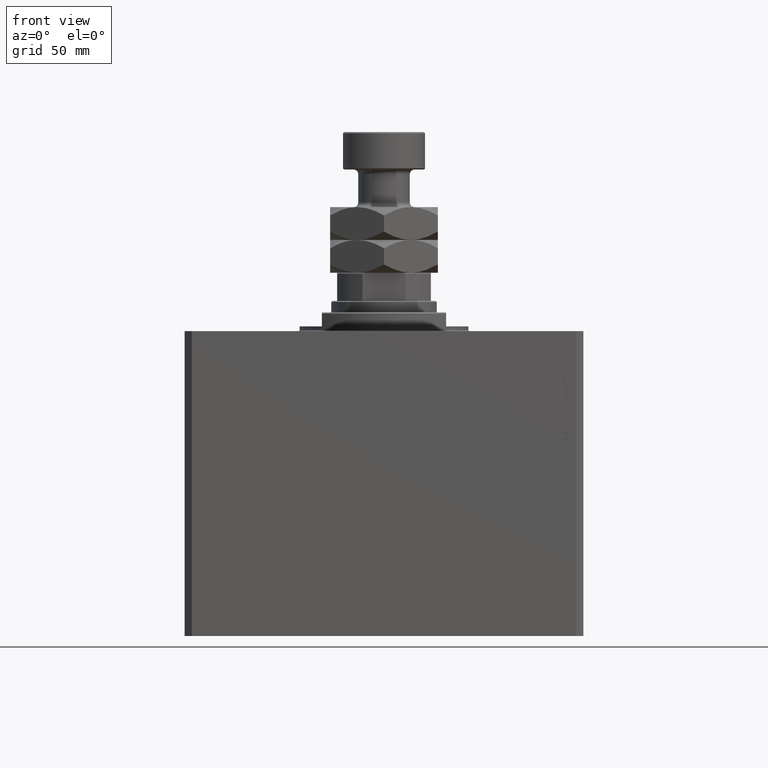
[diagram: clean part render]
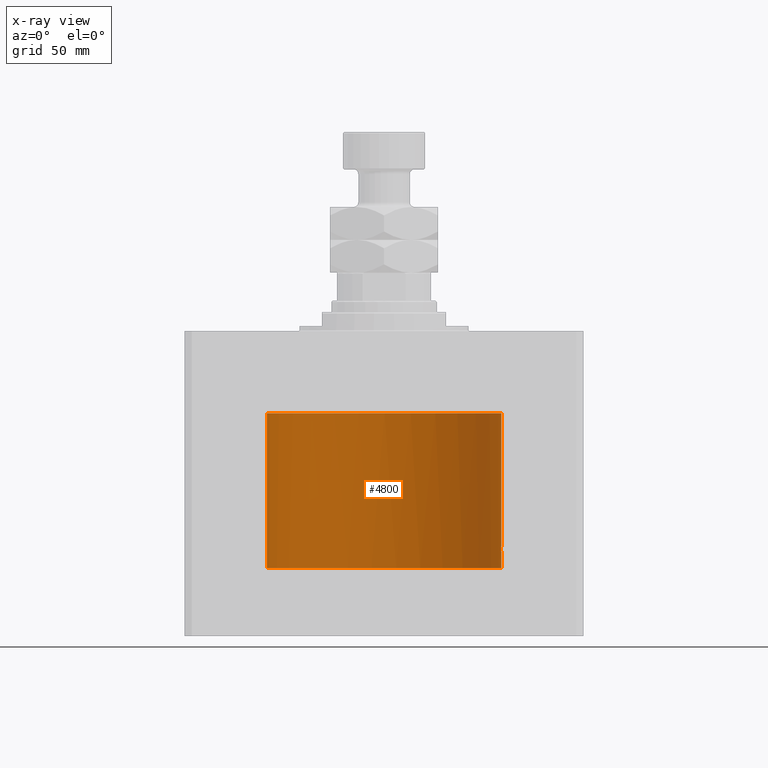
[diagram: x-ray — body ghosted, one internal face saturated and labeled with its STEP entity id]
A machine part, front view, then the same camera in x-ray: the body is ghosted and one INTERNAL B-rep face — a face not visible from any outside direction — is saturated and labeled: STEP entity #4800.
In plain terms, the highlighted cylindrical surface (partial cylindrical patch) has radius 50 mm, axis along (0, 0, 1).
Its self-contained STEP definition (entity closure, byte-faithful):
#440 = CARTESIAN_POINT ( 'NONE',  ( 49.97735290927441554, 1.507618726120014019, -91.67920111852205878 ) ) ;
#894 = CARTESIAN_POINT ( 'NONE',  ( -49.99674241769260163, 0.5812628790054253924, -38.91726219079834692 ) ) ;
#1178 = CARTESIAN_POINT ( 'NONE',  ( 49.97475596784978080, 1.590287868744626465, -91.78017932967551928 ) ) ;
#1457 = CARTESIAN_POINT ( 'NONE',  ( 49.99227494580978259, 0.8871990329080465809, -94.79724057694060946 ) ) ;
#1632 = CARTESIAN_POINT ( 'NONE',  ( -49.99183065344801236, 0.9094976054947803146, -38.78512421073842376 ) ) ;
#1941 = ORIENTED_EDGE ( 'NONE', *, *, #19321, .T. ) ;
#1972 = ORIENTED_EDGE ( 'NONE', *, *, #20462, .T. ) ;
#2952 = LINE ( 'NONE', #7407, #32300 ) ;
#3014 = EDGE_CURVE ( 'NONE', #19511, #17520, #11995, .T. ) ;
#3216 = ORIENTED_EDGE ( 'NONE', *, *, #3014, .T. ) ;
#3481 = CARTESIAN_POINT ( 'NONE',  ( 49.99947616946592177, 0.2621653831979099958, -94.98702351732302418 ) ) ;
#4381 = DIRECTION ( 'NONE',  ( -0.000000000000000000, -0.000000000000000000, 1.000000000000000000 ) ) ;
#4800 = ADVANCED_FACE ( 'NONE', ( #32529 ), #28082, .F. ) ;
#4847 = VERTEX_POINT ( 'NONE', #16942 ) ;
#5112 = CARTESIAN_POINT ( 'NONE',  ( -49.97993074948262660, 1.428636673189961126, -35.58044235009582934 ) ) ;
#5149 = CARTESIAN_POINT ( 'NONE',  ( 49.96398801900035380, 1.898003203340656198, -92.35599117910246036 ) ) ;
#5846 = CARTESIAN_POINT ( 'NONE',  ( -49.98548405603131073, 1.208045562783329085, -38.59825296903090930 ) ) ;
#6776 = VERTEX_POINT ( 'NONE', #43257 ) ;
#7012 = ORIENTED_EDGE ( 'NONE', *, *, #35619, .T. ) ;
#7261 = AXIS2_PLACEMENT_3D ( 'NONE', #19617, #23323, #34706 ) ;
#7407 = CARTESIAN_POINT ( 'NONE',  ( 50.00000000000000000, 0.000000000000000000, -101.0999999999999943 ) ) ;
#8115 = AXIS2_PLACEMENT_3D ( 'NONE', #44830, #49027, #34174 ) ;
#8388 = CARTESIAN_POINT ( 'NONE',  ( 49.99947219664575471, 0.2630509640965526530, -91.01307477770996002 ) ) ;
#8504 = EDGE_CURVE ( 'NONE', #29276, #19511, #2952, .T. ) ;
#8870 = CARTESIAN_POINT ( 'NONE',  ( 49.96051123778291725, 1.986950357331387140, -92.73708610268799646 ) ) ;
#8900 = CARTESIAN_POINT ( 'NONE',  ( 49.96952841668770162, 1.748193601366643479, -94.00584708661953925 ) ) ;
#9086 = CARTESIAN_POINT ( 'NONE',  ( -49.96871419250738455, 1.769572759842160004, -36.06053977682700662 ) ) ;
#9122 = CARTESIAN_POINT ( 'NONE',  ( 49.96769480970100119, 1.797773714148178881, -92.11390000902665065 ) ) ;
#9574 = CARTESIAN_POINT ( 'NONE',  ( -49.96172438467755228, 1.956130037651736764, -37.43292736198093706 ) ) ;
#10010 = DIRECTION ( 'NONE',  ( -0.000000000000000000, -0.000000000000000000, 1.000000000000000000 ) ) ;
#10737 = CARTESIAN_POINT ( 'NONE',  ( 50.00000000000000000, 4.564789087886820642E-17, -95.00000000000001421 ) ) ;
#10945 = VERTEX_POINT ( 'NONE', #30213 ) ;
#11210 = ORIENTED_EDGE ( 'NONE', *, *, #36624, .T. ) ;
#11892 = CARTESIAN_POINT ( 'NONE',  ( 49.98524326844813004, 1.219541607305973274, -94.59053820226215237 ) ) ;
#11995 = CIRCLE ( 'NONE', #7261, 50.00000000000000000 ) ;
#12100 = CARTESIAN_POINT ( 'NONE',  ( 49.96993720661966876, 1.735115303979041013, -91.99682860132226381 ) ) ;
#12307 = CARTESIAN_POINT ( 'NONE',  ( -49.99794250191818890, 0.4682097998948923645, -38.94799507362157698 ) ) ;
#12387 = VECTOR ( 'NONE', #4381, 1000.000000000000000 ) ;
#12549 = CARTESIAN_POINT ( 'NONE',  ( -49.99957753557384876, 0.2360531846322556082, -38.98951856427542850 ) ) ;
#12587 = CARTESIAN_POINT ( 'NONE',  ( 49.95998398718716516, 2.000000000000563549, -93.00000000000001421 ) ) ;
#12713 = LINE ( 'NONE', #38716, #18475 ) ;
#13038 = CARTESIAN_POINT ( 'NONE',  ( -49.96008180170139923, 1.997556221810332433, -36.84661970003235609 ) ) ;
#13287 = CARTESIAN_POINT ( 'NONE',  ( -49.96236629883239999, 1.939709325673530049, -36.49855403535627119 ) ) ;
#14729 = CARTESIAN_POINT ( 'NONE',  ( -49.99609984788813932, 0.6244997998398443828, -35.09999999999999432 ) ) ;
#16014 = CARTESIAN_POINT ( 'NONE',  ( -50.00000000000000711, 0.1172245278669717811, -38.99999999999999289 ) ) ;
#16262 = CARTESIAN_POINT ( 'NONE',  ( -49.96057893414056394, 1.985213089902070127, -36.73009388438973843 ) ) ;
#16301 = CARTESIAN_POINT ( 'NONE',  ( 49.99005286890574951, 1.003169031662882960, -91.26488598342365322 ) ) ;
#16333 = CARTESIAN_POINT ( 'NONE',  ( 49.95998398718716516, 2.000000000000563549, -93.00000000000001421 ) ) ;
#16431 = DIRECTION ( 'NONE',  ( -0.000000000000000000, -0.000000000000000000, 1.000000000000000000 ) ) ;
#16942 = CARTESIAN_POINT ( 'NONE',  ( 50.00000000000000000, 0.000000000000000000, -101.0999999999999943 ) ) ;
#17001 = CARTESIAN_POINT ( 'NONE',  ( -49.96683064842586930, 1.821439728323795082, -36.16567923983517119 ) ) ;
#17520 = VERTEX_POINT ( 'NONE', #14729 ) ;
#18475 = VECTOR ( 'NONE', #16431, 1000.000000000000000 ) ;
#19018 = LINE ( 'NONE', #38303, #12387 ) ;
#19321 = EDGE_CURVE ( 'NONE', #4847, #25943, #19018, .T. ) ;
#19511 = VERTEX_POINT ( 'NONE', #23151 ) ;
#19617 = CARTESIAN_POINT ( 'NONE',  ( 0.000000000000000000, 0.000000000000000000, -35.10000000000000142 ) ) ;
#20462 = EDGE_CURVE ( 'NONE', #38095, #29276, #46846, .T. ) ;
#20483 = CARTESIAN_POINT ( 'NONE',  ( -49.95991227486435093, 2.001791692421229563, -37.08115661319126133 ) ) ;
#23151 = CARTESIAN_POINT ( 'NONE',  ( 50.00000000000000000, 0.000000000000000000, -35.10000000000000142 ) ) ;
#23323 = DIRECTION ( 'NONE',  ( 0.000000000000000000, 0.000000000000000000, 1.000000000000000000 ) ) ;
#23496 = CARTESIAN_POINT ( 'NONE',  ( 50.00000000000000000, 0.1305077942112368161, -90.99999999999995737 ) ) ;
#23978 = CARTESIAN_POINT ( 'NONE',  ( 49.99746746122490038, 0.5192910711913449884, -91.06417861566059457 ) ) ;
#24191 = CARTESIAN_POINT ( 'NONE',  ( -49.96366067148841239, 1.906415494258318688, -36.38411545074576736 ) ) ;
#24689 = AXIS2_PLACEMENT_3D ( 'NONE', #43189, #10010, #36254 ) ;
#25254 = DIRECTION ( 'NONE',  ( -0.000000000000000000, -0.000000000000000000, 1.000000000000000000 ) ) ;
#25943 = VERTEX_POINT ( 'NONE', #10737 ) ;
#27205 = CARTESIAN_POINT ( 'NONE',  ( 49.99599990398858296, 0.6439560014968555013, -91.10196939152021400 ) ) ;
#27652 = CARTESIAN_POINT ( 'NONE',  ( -50.00000000000000000, 6.123233779604962140E-15, -38.99999999999999289 ) ) ;
#27687 = CARTESIAN_POINT ( 'NONE',  ( 49.95998398718716516, 2.000000000000564881, -92.86956549692720841 ) ) ;
#27716 = CARTESIAN_POINT ( 'NONE',  ( 49.97475955401471026, 1.599209500590070165, -94.22908514075388098 ) ) ;
#27887 = CARTESIAN_POINT ( 'NONE',  ( -49.97501996813913649, 1.585093815375989923, -35.75767530425597585 ) ) ;
#28011 = CARTESIAN_POINT ( 'NONE',  ( 50.00000000000000000, -6.476745247090812175E-24, -91.00000000000001421 ) ) ;
#28082 = CYLINDRICAL_SURFACE ( 'NONE', #24689, 50.00000000000000000 ) ;
#29276 = VERTEX_POINT ( 'NONE', #28011 ) ;
#29460 = CIRCLE ( 'NONE', #8115, 50.00000000000000000 ) ;
#29721 = CARTESIAN_POINT ( 'NONE',  ( 50.00000000000000000, 4.564789087886820642E-17, -95.00000000000001421 ) ) ;
#30179 = EDGE_CURVE ( 'NONE', #4847, #10945, #29460, .T. ) ;
#30213 = CARTESIAN_POINT ( 'NONE',  ( -50.00000000000000000, 6.123233995736766085E-15, -101.0999999999999943 ) ) ;
#30673 = CARTESIAN_POINT ( 'NONE',  ( 49.96251892914505532, 1.935809163618958051, -92.48063661859158913 ) ) ;
#30707 = CARTESIAN_POINT ( 'NONE',  ( 49.98259270595343651, 1.322475809934057889, -94.50601728397791135 ) ) ;
#31357 = CARTESIAN_POINT ( 'NONE',  ( -49.97842441486788090, 1.470600559315722089, -38.36056861946006791 ) ) ;
#31545 = ORIENTED_EDGE ( 'NONE', *, *, #30179, .F. ) ;
#31932 = B_SPLINE_CURVE_WITH_KNOTS ( 'NONE', 3,
 ( #29721, #37395, #3481, #48782, #38624, #1457, #45815, #11892, #30707, #27716, #8900, #35398, #38861, #16333 ),
 .UNSPECIFIED., .F., .F.,
 ( 4, 2, 2, 2, 2, 2, 4 ),
 ( 4.436058941706983627E-20, 0.0003909348706788146445, 0.0007818697413576291807, 0.001172804612036443825, 0.001563739482715258361, 0.002345609224072888084, 0.003127478965430518024 ),
 .UNSPECIFIED. ) ;
#32101 = CARTESIAN_POINT ( 'NONE',  ( -49.99328053167040764, 0.8502081429981463989, -35.17418674480239815 ) ) ;
#32300 = VECTOR ( 'NONE', #25254, 1000.000000000000000 ) ;
#32529 = FACE_OUTER_BOUND ( 'NONE', #35878, .T. ) ;
#32796 = EDGE_CURVE ( 'NONE', #10945, #6776, #12713, .T. ) ;
#34174 = DIRECTION ( 'NONE',  ( 1.000000000000000000, 0.000000000000000000, 0.000000000000000000 ) ) ;
#34706 = DIRECTION ( 'NONE',  ( 1.000000000000000000, 0.000000000000000000, 0.000000000000000000 ) ) ;
#34836 = CARTESIAN_POINT ( 'NONE',  ( -49.98772264100204410, 1.112610957917412158, -38.66611860276731960 ) ) ;
#35076 = CARTESIAN_POINT ( 'NONE',  ( -49.96576734963498723, 1.850293004264653485, -37.76824327167415873 ) ) ;
#35115 = CARTESIAN_POINT ( 'NONE',  ( 49.98263500888552358, 1.320952538904951457, -91.49251590435537196 ) ) ;
#35327 = CARTESIAN_POINT ( 'NONE',  ( -49.99369815244034498, 0.8014137247986814483, -38.83616363227216794 ) ) ;
#35398 = CARTESIAN_POINT ( 'NONE',  ( 49.96215500645249818, 1.947567242801464760, -93.52430054767012280 ) ) ;
#35457 = ORIENTED_EDGE ( 'NONE', *, *, #32796, .F. ) ;
#35575 = CARTESIAN_POINT ( 'NONE',  ( -49.98084510722092944, 1.386763413674867218, -38.44591627325701211 ) ) ;
#35619 = EDGE_CURVE ( 'NONE', #17520, #6776, #46136, .T. ) ;
#35878 = EDGE_LOOP ( 'NONE', ( #35457, #31545, #1941, #11210, #1972, #36734, #3216, #7012 ) ) ;
#36254 = DIRECTION ( 'NONE',  ( 1.000000000000000000, 0.000000000000000000, 0.000000000000000000 ) ) ;
#36624 = EDGE_CURVE ( 'NONE', #25943, #38095, #31932, .T. ) ;
#36734 = ORIENTED_EDGE ( 'NONE', *, *, #8504, .T. ) ;
#37395 = CARTESIAN_POINT ( 'NONE',  ( 50.00000000000000711, 0.1321888607815029093, -95.00000000000005684 ) ) ;
#38095 = VERTEX_POINT ( 'NONE', #41003 ) ;
#38303 = CARTESIAN_POINT ( 'NONE',  ( 50.00000000000000000, 0.000000000000000000, -101.0999999999999943 ) ) ;
#38624 = CARTESIAN_POINT ( 'NONE',  ( 49.99598718814007015, 0.6449352407546056209, -94.89769711772643745 ) ) ;
#38716 = CARTESIAN_POINT ( 'NONE',  ( -50.00000000000000000, 6.123233995736766085E-15, -101.0999999999999943 ) ) ;
#38861 = CARTESIAN_POINT ( 'NONE',  ( 49.95998398718717226, 2.000000000000561773, -93.26098757528311012 ) ) ;
#39038 = CARTESIAN_POINT ( 'NONE',  ( -49.99609984788813932, 0.6244997998398443828, -35.09999999999999432 ) ) ;
#39073 = CARTESIAN_POINT ( 'NONE',  ( 50.00000000000000000, -6.476745247090812175E-24, -91.00000000000001421 ) ) ;
#39280 = CARTESIAN_POINT ( 'NONE',  ( -49.97381024033256836, 1.619834269595411547, -38.17896137017439884 ) ) ;
#39319 = CARTESIAN_POINT ( 'NONE',  ( 49.98523696312182096, 1.219762141829697999, -91.40967013674320185 ) ) ;
#39758 = CARTESIAN_POINT ( 'NONE',  ( -49.97160094710510236, 1.685948024779095222, -38.08231391555865741 ) ) ;
#41003 = CARTESIAN_POINT ( 'NONE',  ( 49.95998398718716516, 2.000000000000563549, -93.00000000000001421 ) ) ;
#42788 = CARTESIAN_POINT ( 'NONE',  ( 49.99229103891970993, 0.8862970221311291530, -91.20231340018574429 ) ) ;
#43189 = CARTESIAN_POINT ( 'NONE',  ( 0.000000000000000000, 0.000000000000000000, -101.0999999999999943 ) ) ;
#43257 = CARTESIAN_POINT ( 'NONE',  ( -50.00000000000000000, 6.123233779604962140E-15, -38.99999999999999289 ) ) ;
#44830 = CARTESIAN_POINT ( 'NONE',  ( 0.000000000000000000, 0.000000000000000000, -101.0999999999999943 ) ) ;
#45815 = CARTESIAN_POINT ( 'NONE',  ( 49.99007528730422933, 1.002097354324908984, -94.73576910828040809 ) ) ;
#46136 = B_SPLINE_CURVE_WITH_KNOTS ( 'NONE', 3,
 ( #39038, #32101, #46463, #5112, #27887, #9086, #17001, #24191, #13287, #16262, #13038, #20483, #47192, #9574, #46219, #35076, #46948, #39758, #39280, #31357, #35575, #5846, #34836, #1632, #35327, #894, #12307, #12549, #16014, #27652 ),
 .UNSPECIFIED., .F., .F.,
 ( 4, 2, 2, 2, 2, 2, 2, 2, 2, 2, 2, 2, 2, 2, 4 ),
 ( 0.000000000000000000, 0.0007026905982572669235, 0.001405381196514533847, 0.001756726495643167038, 0.002108071794771800012, 0.002459417093900433636, 0.002810762393029066393, 0.003162107692157699584, 0.003513452991286331907, 0.003864798290414965098, 0.004216143589543597421, 0.004567488888672231045, 0.004918834187800863803, 0.005270179486929496560, 0.005621524786058129317 ),
 .UNSPECIFIED. ) ;
#46219 = CARTESIAN_POINT ( 'NONE',  ( -49.96284986351769675, 1.927465837588734576, -37.54649553614981983 ) ) ;
#46463 = CARTESIAN_POINT ( 'NONE',  ( -49.98916325126266713, 1.057373115637954442, -35.28590876563971079 ) ) ;
#46846 = B_SPLINE_CURVE_WITH_KNOTS ( 'NONE', 3,
 ( #12587, #27687, #8870, #30673, #5149, #9122, #12100, #1178, #440, #35115, #39319, #16301, #42788, #27205, #23978, #8388, #23496, #39073 ),
 .UNSPECIFIED., .F., .F.,
 ( 4, 2, 2, 2, 2, 2, 2, 2, 4 ),
 ( 0.003127478965430518024, 0.003518236230679781373, 0.003908993495929044722, 0.004299750761178307637, 0.004690508026427571420, 0.005081265291676834335, 0.005472022556926097250, 0.005862779822175361033, 0.006253537087424623948 ),
 .UNSPECIFIED. ) ;
#46948 = CARTESIAN_POINT ( 'NONE',  ( -49.96758126801596944, 1.801150794128993704, -37.87731406627096931 ) ) ;
#47192 = CARTESIAN_POINT ( 'NONE',  ( -49.96025037148059766, 1.993421940698851813, -37.20034917343377145 ) ) ;
#48782 = CARTESIAN_POINT ( 'NONE',  ( 49.99748146545036320, 0.5178754880116728243, -94.93618132556299827 ) ) ;
#49027 = DIRECTION ( 'NONE',  ( 0.000000000000000000, 0.000000000000000000, 1.000000000000000000 ) ) ;